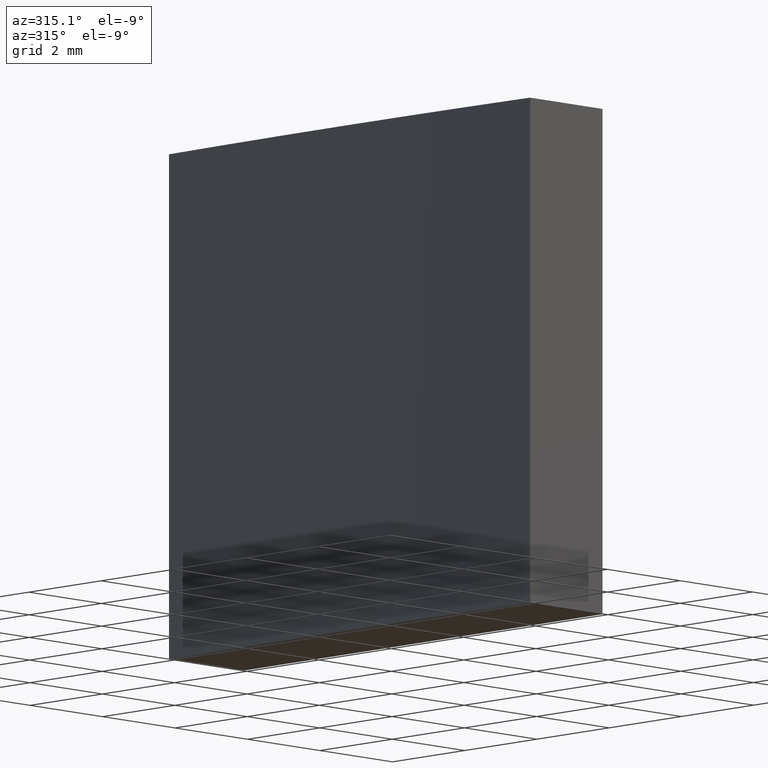
[diagram: clean part render]
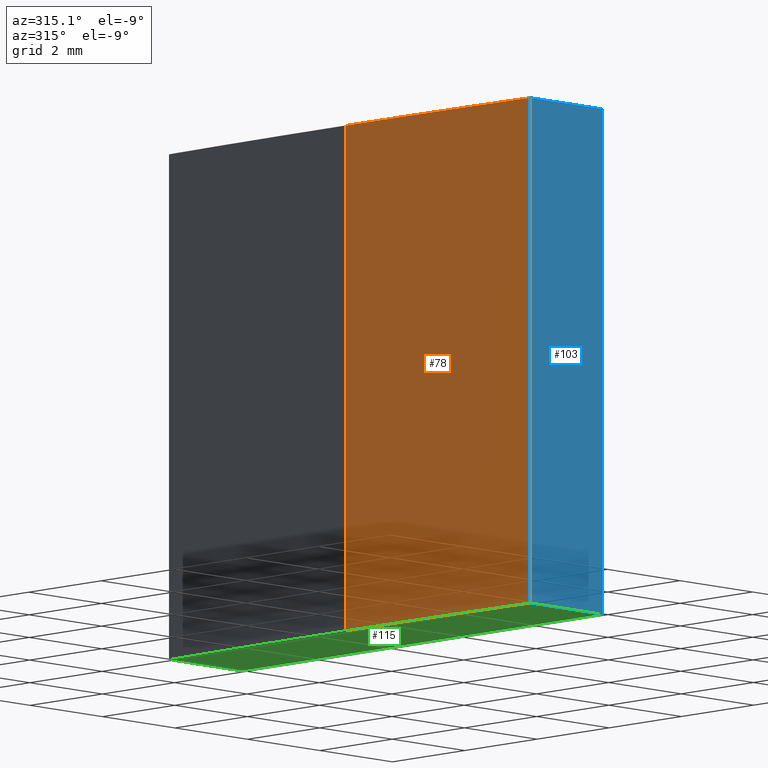
[diagram: same view with three faces highlighted in distinct colors, each labeled with its STEP entity id]
A machine part, auxiliary view with three faces highlighted in distinct colors.
Their STEP definitions:

[orange] entity #78 — the highlighted cylindrical surface (partial cylindrical patch) has radius 129.25 mm, axis along (-0, -0, -1).
#14 = LINE ( 'NONE', #206, #178 ) ;
#19 = CARTESIAN_POINT ( 'NONE',  ( 0.000000000000000000, 0.000000000000000000, 0.000000000000000000 ) ) ;
#21 = DIRECTION ( 'NONE',  ( -0.000000000000000000, -0.000000000000000000, -1.000000000000000000 ) ) ;
#32 = VERTEX_POINT ( 'NONE', #84 ) ;
#54 = ORIENTED_EDGE ( 'NONE', *, *, #70, .T. ) ;
#56 = DIRECTION ( 'NONE',  ( -0.000000000000000000, -0.000000000000000000, -1.000000000000000000 ) ) ;
#60 = CYLINDRICAL_SURFACE ( 'NONE', #175, 129.2500000000000000 ) ;
#70 = EDGE_CURVE ( 'NONE', #32, #96, #252, .T. ) ;
#78 = ADVANCED_FACE ( 'NONE', ( #87 ), #60, .T. ) ;
#79 = CARTESIAN_POINT ( 'NONE',  ( -129.1532519915778039, -4.999999999999997335, 10.00000000000000000 ) ) ;
#84 = CARTESIAN_POINT ( 'NONE',  ( -129.2500000000000000, 0.000000000000000000, 0.000000000000000000 ) ) ;
#85 = AXIS2_PLACEMENT_3D ( 'NONE', #193, #114, #88 ) ;
#87 = FACE_OUTER_BOUND ( 'NONE', #220, .T. ) ;
#88 = DIRECTION ( 'NONE',  ( 1.000000000000000000, 0.000000000000000000, 0.000000000000000000 ) ) ;
#96 = VERTEX_POINT ( 'NONE', #169 ) ;
#107 = DIRECTION ( 'NONE',  ( 1.000000000000000000, 0.000000000000000000, 0.000000000000000000 ) ) ;
#114 = DIRECTION ( 'NONE',  ( 0.000000000000000000, 0.000000000000000000, 1.000000000000000000 ) ) ;
#124 = EDGE_CURVE ( 'NONE', #222, #32, #255, .T. ) ;
#125 = VERTEX_POINT ( 'NONE', #79 ) ;
#129 = DIRECTION ( 'NONE',  ( 0.000000000000000000, 0.000000000000000000, 1.000000000000000000 ) ) ;
#135 = DIRECTION ( 'NONE',  ( -1.000000000000000000, 0.000000000000000000, 0.000000000000000000 ) ) ;
#137 = VECTOR ( 'NONE', #21, 1000.000000000000000 ) ;
#140 = ORIENTED_EDGE ( 'NONE', *, *, #263, .F. ) ;
#164 = ORIENTED_EDGE ( 'NONE', *, *, #180, .F. ) ;
#169 = CARTESIAN_POINT ( 'NONE',  ( -129.1532519915778039, -4.999999999999997335, 0.000000000000000000 ) ) ;
#175 = AXIS2_PLACEMENT_3D ( 'NONE', #189, #187, #135 ) ;
#178 = VECTOR ( 'NONE', #56, 1000.000000000000000 ) ;
#180 = EDGE_CURVE ( 'NONE', #222, #125, #239, .T. ) ;
#184 = CARTESIAN_POINT ( 'NONE',  ( -129.2500000000000000, 0.000000000000000000, 10.00000000000000000 ) ) ;
#187 = DIRECTION ( 'NONE',  ( -0.000000000000000000, -0.000000000000000000, -1.000000000000000000 ) ) ;
#189 = CARTESIAN_POINT ( 'NONE',  ( 0.000000000000000000, 0.000000000000000000, 10.00000000000000000 ) ) ;
#193 = CARTESIAN_POINT ( 'NONE',  ( 0.000000000000000000, 0.000000000000000000, 10.00000000000000000 ) ) ;
#206 = CARTESIAN_POINT ( 'NONE',  ( -129.1532519915778039, -4.999999999999997335, 10.00000000000000000 ) ) ;
#216 = AXIS2_PLACEMENT_3D ( 'NONE', #19, #129, #107 ) ;
#220 = EDGE_LOOP ( 'NONE', ( #164, #244, #54, #140 ) ) ;
#222 = VERTEX_POINT ( 'NONE', #268 ) ;
#239 = CIRCLE ( 'NONE', #85, 129.2500000000000000 ) ;
#244 = ORIENTED_EDGE ( 'NONE', *, *, #124, .T. ) ;
#252 = CIRCLE ( 'NONE', #216, 129.2500000000000000 ) ;
#255 = LINE ( 'NONE', #184, #137 ) ;
#263 = EDGE_CURVE ( 'NONE', #125, #96, #14, .T. ) ;
#268 = CARTESIAN_POINT ( 'NONE',  ( -129.2500000000000000, 0.000000000000000000, 10.00000000000000000 ) ) ;

[blue] entity #103 — the highlighted planar face has unit normal (0, 1, -0).
#10 = VECTOR ( 'NONE', #80, 1000.000000000000000 ) ;
#14 = LINE ( 'NONE', #206, #178 ) ;
#17 = CARTESIAN_POINT ( 'NONE',  ( -127.1532519915778181, -5.000000000000000888, 10.00000000000000000 ) ) ;
#24 = CARTESIAN_POINT ( 'NONE',  ( -129.1532519915778039, -4.999999999999997335, 0.000000000000000000 ) ) ;
#25 = EDGE_CURVE ( 'NONE', #96, #264, #270, .T. ) ;
#38 = EDGE_CURVE ( 'NONE', #125, #142, #148, .T. ) ;
#43 = CARTESIAN_POINT ( 'NONE',  ( -129.1532519915778039, -4.999999999999997335, 10.00000000000000000 ) ) ;
#47 = DIRECTION ( 'NONE',  ( -1.000000000000000000, 1.734723475976805517E-15, 0.000000000000000000 ) ) ;
#50 = EDGE_CURVE ( 'NONE', #142, #264, #174, .T. ) ;
#56 = DIRECTION ( 'NONE',  ( -0.000000000000000000, -0.000000000000000000, -1.000000000000000000 ) ) ;
#65 = CARTESIAN_POINT ( 'NONE',  ( -127.1532519915778181, -5.000000000000000888, 10.00000000000000000 ) ) ;
#74 = ORIENTED_EDGE ( 'NONE', *, *, #263, .T. ) ;
#79 = CARTESIAN_POINT ( 'NONE',  ( -129.1532519915778039, -4.999999999999997335, 10.00000000000000000 ) ) ;
#80 = DIRECTION ( 'NONE',  ( 1.000000000000000000, -1.734723475976805517E-15, 0.000000000000000000 ) ) ;
#96 = VERTEX_POINT ( 'NONE', #169 ) ;
#99 = VECTOR ( 'NONE', #207, 1000.000000000000000 ) ;
#102 = CARTESIAN_POINT ( 'NONE',  ( -127.1532519915778181, -5.000000000000000888, 0.000000000000000000 ) ) ;
#103 = ADVANCED_FACE ( 'NONE', ( #224 ), #256, .F. ) ;
#104 = CARTESIAN_POINT ( 'NONE',  ( -129.1532519915778039, -4.999999999999997335, 10.00000000000000000 ) ) ;
#112 = DIRECTION ( 'NONE',  ( 1.000000000000000000, -1.734723475976805517E-15, 0.000000000000000000 ) ) ;
#125 = VERTEX_POINT ( 'NONE', #79 ) ;
#131 = DIRECTION ( 'NONE',  ( 1.734723475976805517E-15, 1.000000000000000000, -0.000000000000000000 ) ) ;
#142 = VERTEX_POINT ( 'NONE', #17 ) ;
#148 = LINE ( 'NONE', #104, #10 ) ;
#169 = CARTESIAN_POINT ( 'NONE',  ( -129.1532519915778039, -4.999999999999997335, 0.000000000000000000 ) ) ;
#174 = LINE ( 'NONE', #65, #99 ) ;
#178 = VECTOR ( 'NONE', #56, 1000.000000000000000 ) ;
#200 = ORIENTED_EDGE ( 'NONE', *, *, #50, .F. ) ;
#201 = ORIENTED_EDGE ( 'NONE', *, *, #25, .T. ) ;
#206 = CARTESIAN_POINT ( 'NONE',  ( -129.1532519915778039, -4.999999999999997335, 10.00000000000000000 ) ) ;
#207 = DIRECTION ( 'NONE',  ( -0.000000000000000000, -0.000000000000000000, -1.000000000000000000 ) ) ;
#210 = VECTOR ( 'NONE', #112, 1000.000000000000000 ) ;
#217 = EDGE_LOOP ( 'NONE', ( #201, #200, #260, #74 ) ) ;
#224 = FACE_OUTER_BOUND ( 'NONE', #217, .T. ) ;
#245 = AXIS2_PLACEMENT_3D ( 'NONE', #43, #131, #47 ) ;
#256 = PLANE ( 'NONE',  #245 ) ;
#260 = ORIENTED_EDGE ( 'NONE', *, *, #38, .F. ) ;
#263 = EDGE_CURVE ( 'NONE', #125, #96, #14, .T. ) ;
#264 = VERTEX_POINT ( 'NONE', #102 ) ;
#270 = LINE ( 'NONE', #24, #210 ) ;

[green] entity #115 — the highlighted planar face has unit normal (0, 0, 1).
#15 = ORIENTED_EDGE ( 'NONE', *, *, #25, .F. ) ;
#16 = FACE_OUTER_BOUND ( 'NONE', #265, .T. ) ;
#19 = CARTESIAN_POINT ( 'NONE',  ( 0.000000000000000000, 0.000000000000000000, 0.000000000000000000 ) ) ;
#20 = CARTESIAN_POINT ( 'NONE',  ( 0.000000000000000000, 0.000000000000000000, 0.000000000000000000 ) ) ;
#24 = CARTESIAN_POINT ( 'NONE',  ( -129.1532519915778039, -4.999999999999997335, 0.000000000000000000 ) ) ;
#25 = EDGE_CURVE ( 'NONE', #96, #264, #270, .T. ) ;
#32 = VERTEX_POINT ( 'NONE', #84 ) ;
#34 = ORIENTED_EDGE ( 'NONE', *, *, #141, .F. ) ;
#48 = CIRCLE ( 'NONE', #77, 129.2500000000000000 ) ;
#52 = ORIENTED_EDGE ( 'NONE', *, *, #223, .F. ) ;
#57 = LINE ( 'NONE', #110, #106 ) ;
#64 = CARTESIAN_POINT ( 'NONE',  ( -127.1532519915778181, 5.000000000000000888, 0.000000000000000000 ) ) ;
#66 = PLANE ( 'NONE',  #221 ) ;
#70 = EDGE_CURVE ( 'NONE', #32, #96, #252, .T. ) ;
#77 = AXIS2_PLACEMENT_3D ( 'NONE', #20, #130, #126 ) ;
#82 = DIRECTION ( 'NONE',  ( 1.000000000000000000, 0.000000000000000000, -0.000000000000000000 ) ) ;
#84 = CARTESIAN_POINT ( 'NONE',  ( -129.2500000000000000, 0.000000000000000000, 0.000000000000000000 ) ) ;
#96 = VERTEX_POINT ( 'NONE', #169 ) ;
#102 = CARTESIAN_POINT ( 'NONE',  ( -127.1532519915778181, -5.000000000000000888, 0.000000000000000000 ) ) ;
#106 = VECTOR ( 'NONE', #154, 1000.000000000000000 ) ;
#107 = DIRECTION ( 'NONE',  ( 1.000000000000000000, 0.000000000000000000, 0.000000000000000000 ) ) ;
#110 = CARTESIAN_POINT ( 'NONE',  ( -129.1532519915778039, 4.999999999999997335, 0.000000000000000000 ) ) ;
#112 = DIRECTION ( 'NONE',  ( 1.000000000000000000, -1.734723475976805517E-15, 0.000000000000000000 ) ) ;
#115 = ADVANCED_FACE ( 'NONE', ( #16 ), #66, .F. ) ;
#126 = DIRECTION ( 'NONE',  ( 1.000000000000000000, 0.000000000000000000, 0.000000000000000000 ) ) ;
#129 = DIRECTION ( 'NONE',  ( 0.000000000000000000, 0.000000000000000000, 1.000000000000000000 ) ) ;
#130 = DIRECTION ( 'NONE',  ( 0.000000000000000000, 0.000000000000000000, 1.000000000000000000 ) ) ;
#134 = CARTESIAN_POINT ( 'NONE',  ( -127.1532519915778181, 5.000000000000000888, 0.000000000000000000 ) ) ;
#141 = EDGE_CURVE ( 'NONE', #172, #237, #57, .T. ) ;
#143 = ORIENTED_EDGE ( 'NONE', *, *, #70, .F. ) ;
#146 = LINE ( 'NONE', #64, #235 ) ;
#154 = DIRECTION ( 'NONE',  ( -1.000000000000000000, -1.734723475976805517E-15, -0.000000000000000000 ) ) ;
#160 = ORIENTED_EDGE ( 'NONE', *, *, #202, .F. ) ;
#166 = DIRECTION ( 'NONE',  ( -0.000000000000000000, 1.000000000000000000, -0.000000000000000000 ) ) ;
#169 = CARTESIAN_POINT ( 'NONE',  ( -129.1532519915778039, -4.999999999999997335, 0.000000000000000000 ) ) ;
#172 = VERTEX_POINT ( 'NONE', #134 ) ;
#202 = EDGE_CURVE ( 'NONE', #264, #172, #146, .T. ) ;
#203 = DIRECTION ( 'NONE',  ( 0.000000000000000000, 0.000000000000000000, 1.000000000000000000 ) ) ;
#210 = VECTOR ( 'NONE', #112, 1000.000000000000000 ) ;
#216 = AXIS2_PLACEMENT_3D ( 'NONE', #19, #129, #107 ) ;
#221 = AXIS2_PLACEMENT_3D ( 'NONE', #231, #203, #82 ) ;
#223 = EDGE_CURVE ( 'NONE', #237, #32, #48, .T. ) ;
#225 = CARTESIAN_POINT ( 'NONE',  ( -129.1532519915778039, 4.999999999999997335, 0.000000000000000000 ) ) ;
#231 = CARTESIAN_POINT ( 'NONE',  ( 0.000000000000000000, 0.000000000000000000, 0.000000000000000000 ) ) ;
#235 = VECTOR ( 'NONE', #166, 1000.000000000000000 ) ;
#237 = VERTEX_POINT ( 'NONE', #225 ) ;
#252 = CIRCLE ( 'NONE', #216, 129.2500000000000000 ) ;
#264 = VERTEX_POINT ( 'NONE', #102 ) ;
#265 = EDGE_LOOP ( 'NONE', ( #52, #34, #160, #15, #143 ) ) ;
#270 = LINE ( 'NONE', #24, #210 ) ;